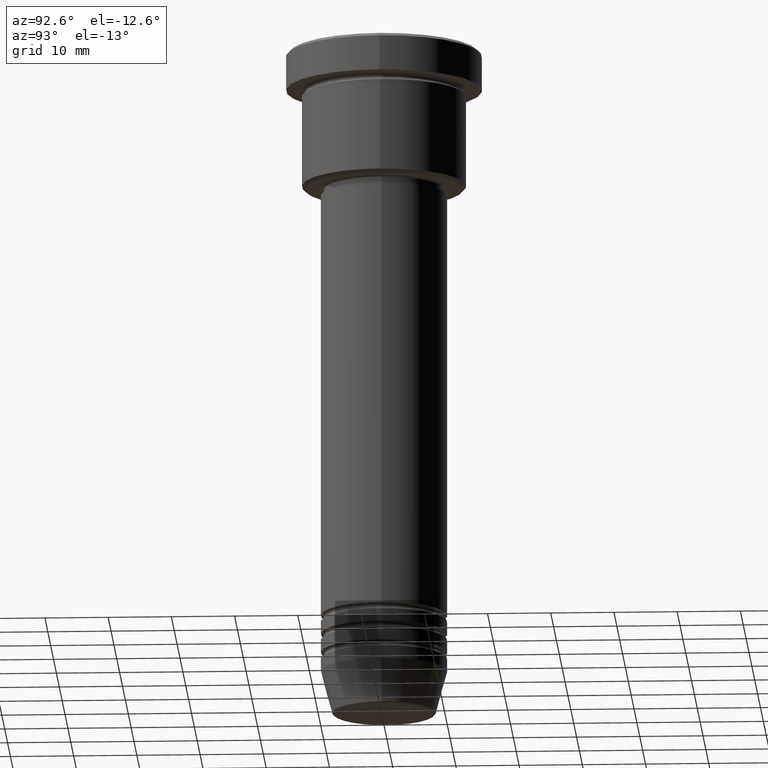
[diagram: clean part render]
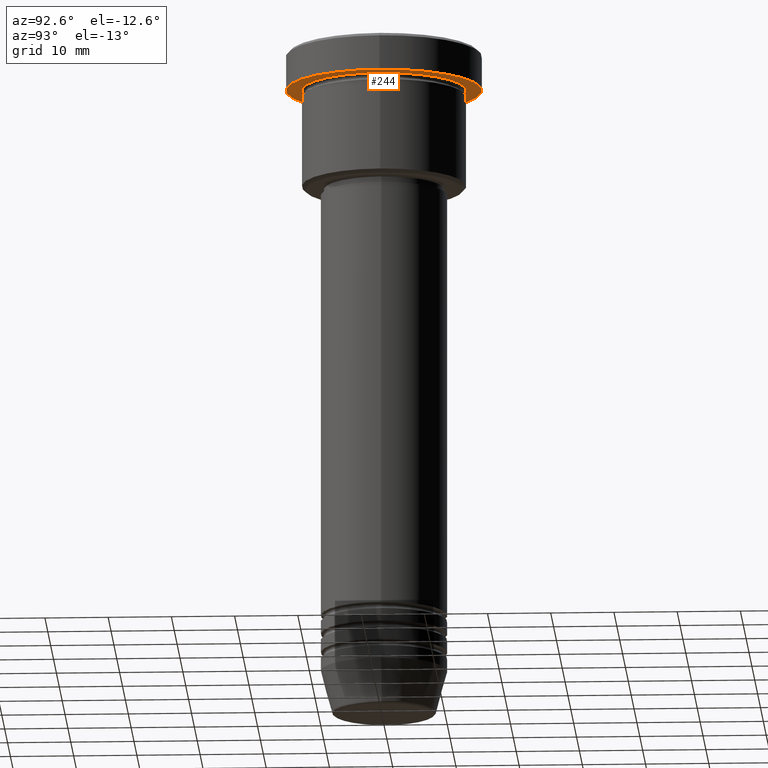
[diagram: same view with one face highlighted and labeled with its STEP entity id]
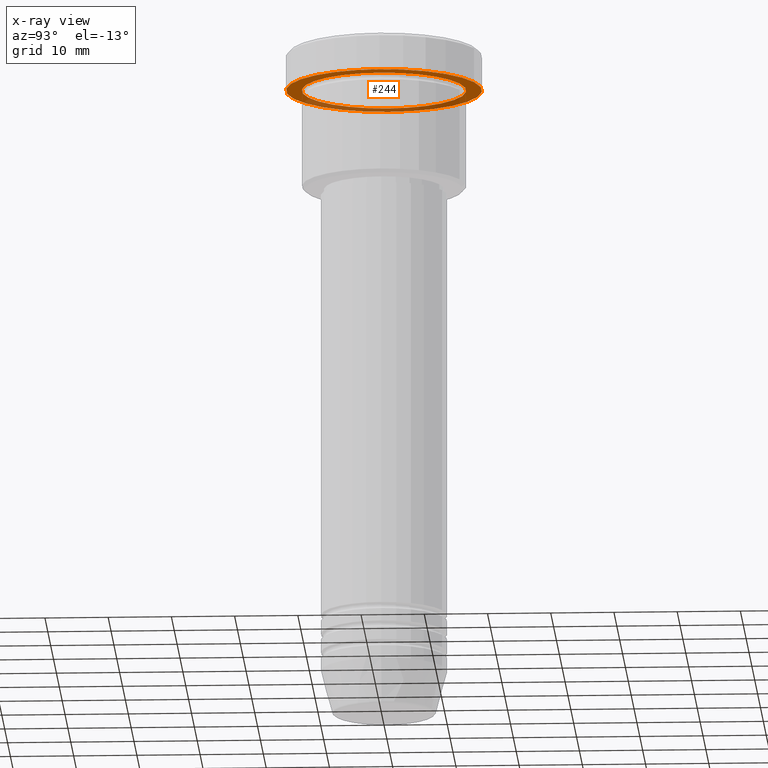
[diagram: x-ray of the same camera — body ghosted, the highlighted face saturated]
A machine part, auxiliary view. The second image highlights one B-rep face of the part: STEP entity #244.
The next image is the same camera in x-ray: the body ghosted, the highlighted face saturated — about 33% of this face is hidden behind the body in this view.
In plain terms, the highlighted planar face has unit normal (0, 0, -1).
Its self-contained STEP definition (entity closure, byte-faithful):
#22 = CARTESIAN_POINT ( 'NONE',  ( 0.000000000000000000, 0.000000000000000000, -5.999999999999995559 ) ) ;
#24 = VERTEX_POINT ( 'NONE', #462 ) ;
#50 = DIRECTION ( 'NONE',  ( 1.000000000000000000, 0.000000000000000000, 0.000000000000000000 ) ) ;
#135 = DIRECTION ( 'NONE',  ( -0.000000000000000000, -0.000000000000000000, 1.000000000000000000 ) ) ;
#167 = ORIENTED_EDGE ( 'NONE', *, *, #574, .F. ) ;
#170 = CARTESIAN_POINT ( 'NONE',  ( 0.000000000000000000, 15.50000000000000000, -5.999999999999995559 ) ) ;
#171 = EDGE_LOOP ( 'NONE', ( #167, #479 ) ) ;
#179 = AXIS2_PLACEMENT_3D ( 'NONE', #1065, #135, #50 ) ;
#217 = CIRCLE ( 'NONE', #456, 13.00000000000000000 ) ;
#235 = ORIENTED_EDGE ( 'NONE', *, *, #445, .T. ) ;
#244 = ADVANCED_FACE ( 'NONE', ( #354, #916 ), #799, .T. ) ;
#264 = DIRECTION ( 'NONE',  ( -1.000000000000000000, 0.000000000000000000, -0.000000000000000000 ) ) ;
#289 = DIRECTION ( 'NONE',  ( -0.000000000000000000, -0.000000000000000000, 1.000000000000000000 ) ) ;
#354 = FACE_BOUND ( 'NONE', #889, .T. ) ;
#384 = AXIS2_PLACEMENT_3D ( 'NONE', #581, #1136, #1049 ) ;
#398 = CIRCLE ( 'NONE', #558, 13.00000000000000000 ) ;
#445 = EDGE_CURVE ( 'NONE', #24, #1048, #217, .T. ) ;
#456 = AXIS2_PLACEMENT_3D ( 'NONE', #654, #289, #660 ) ;
#462 = CARTESIAN_POINT ( 'NONE',  ( -13.00000000000000000, 0.000000000000000000, -5.999999999999994671 ) ) ;
#474 = ORIENTED_EDGE ( 'NONE', *, *, #776, .T. ) ;
#479 = ORIENTED_EDGE ( 'NONE', *, *, #994, .F. ) ;
#498 = CARTESIAN_POINT ( 'NONE',  ( 13.00000000000000000, 1.592040838891559095E-15, -5.999999999999994671 ) ) ;
#513 = CIRCLE ( 'NONE', #179, 15.50000000000000000 ) ;
#558 = AXIS2_PLACEMENT_3D ( 'NONE', #22, #1125, #754 ) ;
#574 = EDGE_CURVE ( 'NONE', #1108, #1124, #513, .T. ) ;
#581 = CARTESIAN_POINT ( 'NONE',  ( 0.000000000000000000, 0.000000000000000000, -5.999999999999995559 ) ) ;
#635 = AXIS2_PLACEMENT_3D ( 'NONE', #170, #724, #264 ) ;
#654 = CARTESIAN_POINT ( 'NONE',  ( 0.000000000000000000, 0.000000000000000000, -5.999999999999995559 ) ) ;
#660 = DIRECTION ( 'NONE',  ( -1.000000000000000000, 0.000000000000000000, 0.000000000000000000 ) ) ;
#705 = CARTESIAN_POINT ( 'NONE',  ( -15.50000000000000000, 1.898202538678397557E-15, -5.999999999999995559 ) ) ;
#724 = DIRECTION ( 'NONE',  ( 0.000000000000000000, 0.000000000000000000, -1.000000000000000000 ) ) ;
#754 = DIRECTION ( 'NONE',  ( -1.000000000000000000, 0.000000000000000000, 0.000000000000000000 ) ) ;
#776 = EDGE_CURVE ( 'NONE', #1048, #24, #398, .T. ) ;
#799 = PLANE ( 'NONE',  #635 ) ;
#889 = EDGE_LOOP ( 'NONE', ( #235, #474 ) ) ;
#900 = CARTESIAN_POINT ( 'NONE',  ( 15.50000000000000000, 0.000000000000000000, -5.999999999999995559 ) ) ;
#916 = FACE_OUTER_BOUND ( 'NONE', #171, .T. ) ;
#994 = EDGE_CURVE ( 'NONE', #1124, #1108, #1059, .T. ) ;
#1048 = VERTEX_POINT ( 'NONE', #498 ) ;
#1049 = DIRECTION ( 'NONE',  ( 1.000000000000000000, 0.000000000000000000, 0.000000000000000000 ) ) ;
#1059 = CIRCLE ( 'NONE', #384, 15.50000000000000000 ) ;
#1065 = CARTESIAN_POINT ( 'NONE',  ( 0.000000000000000000, 0.000000000000000000, -5.999999999999995559 ) ) ;
#1108 = VERTEX_POINT ( 'NONE', #900 ) ;
#1124 = VERTEX_POINT ( 'NONE', #705 ) ;
#1125 = DIRECTION ( 'NONE',  ( -0.000000000000000000, -0.000000000000000000, 1.000000000000000000 ) ) ;
#1136 = DIRECTION ( 'NONE',  ( -0.000000000000000000, -0.000000000000000000, 1.000000000000000000 ) ) ;